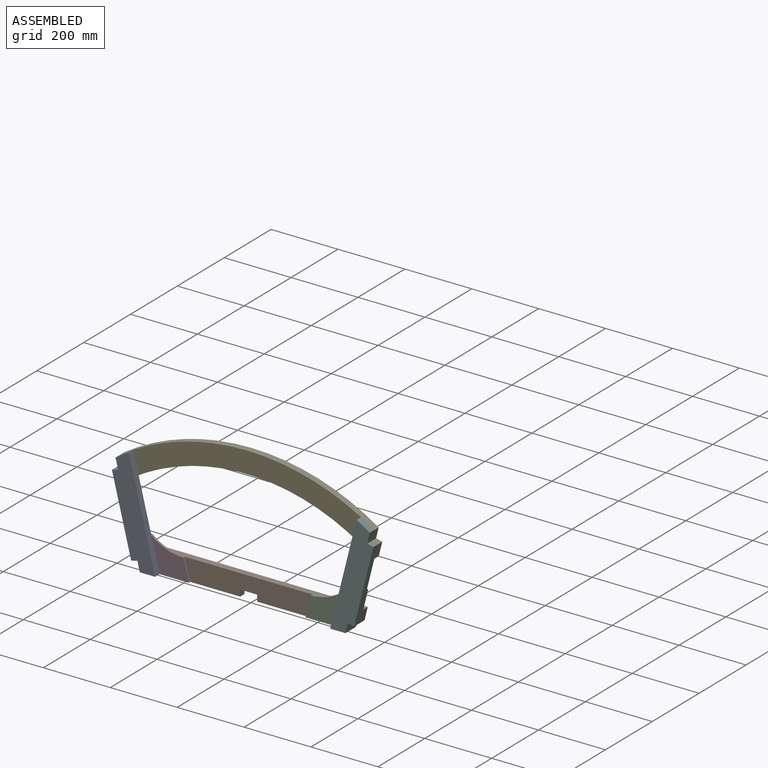
[diagram: assembled view]
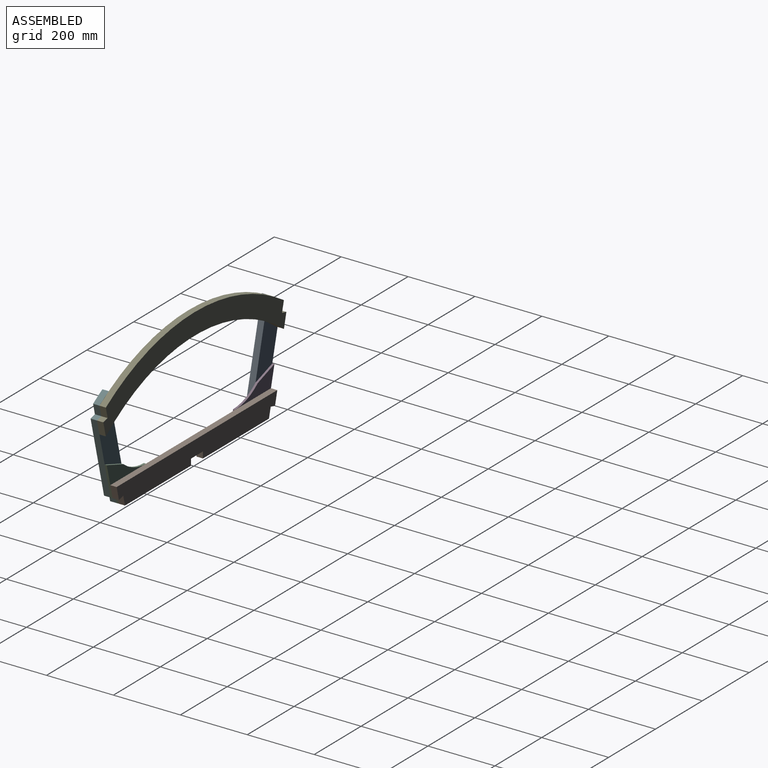
[diagram: assembled view, second angle]
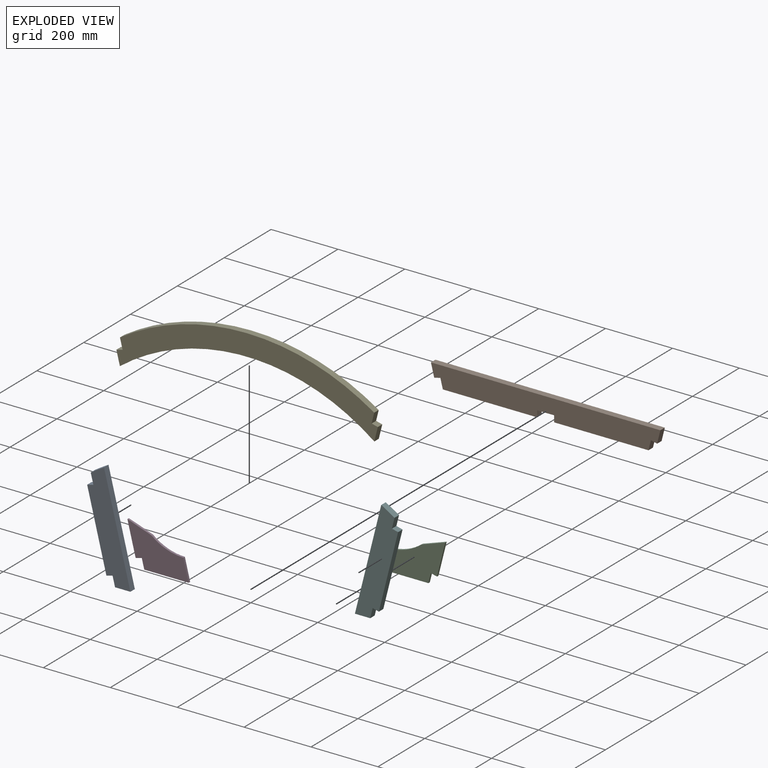
[diagram: exploded view]
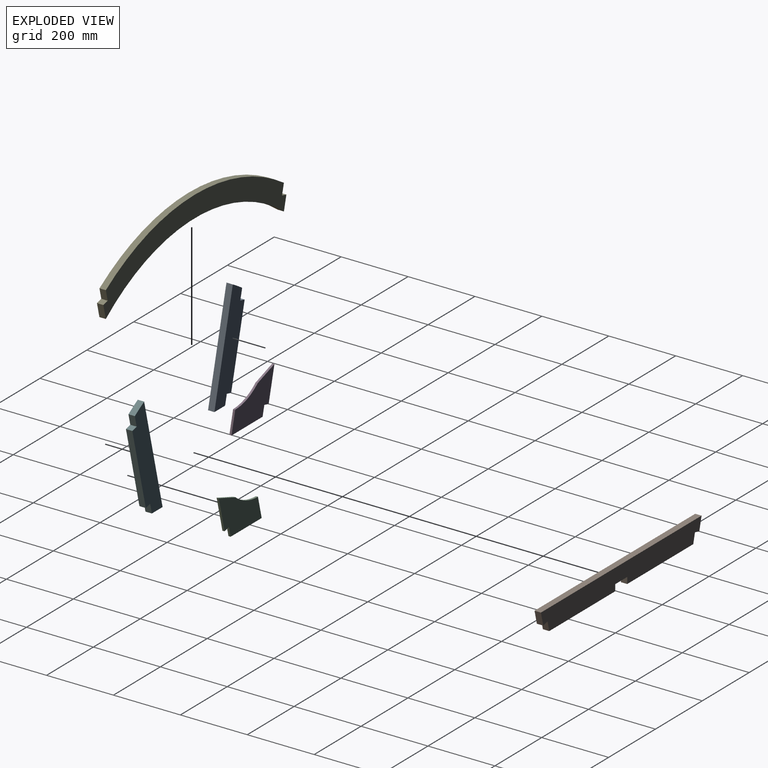
[diagram: exploded view, second angle]
ASSEMBLY  parts=6 mates=5
PART A: 10 faces, bbox 129.1x19.1x314.8 mm
  f0: plane 230.12x57.53mm, normal (-0.97,0,-0.24), area 4518.6mm2, adj f1,f7,f8,f9
  f1: plane 19.05x18.48mm, normal (0.24,0,-0.97), area 362.9mm2, adj f0,f2,f8,f9
  f2: plane 29.26x19.05mm, normal (-0.97,0,-0.24), area 574.6mm2, adj f1,f3,f8,f9
  f3: plane 45.82x19.05mm, normal (0,0,-1), area 872.8mm2, adj f2,f4,f8,f9
  f4: plane 314.84x78.71mm, normal (0.97,0,0.24), area 6182.2mm2, adj f3,f5,f8,f9
  f5: cylinder r=695.32mm len=39.79mm, axis (0,1,0), area 886.5mm2, adj f4,f6,f8,f9
  f6: plane 31.34x19.05mm, normal (-0.97,0,-0.24), area 615.5mm2, adj f5,f7,f8,f9
  f7: plane 19.05x18.48mm, normal (-0.24,0,0.97), area 362.9mm2, adj f0,f6,f8,f9
  f8: plane 314.84x129.14mm, normal (0,-1,0), area 18403.5mm2, adj f0,f1,f2,f3,f4,f5,f6,f7
  f9: plane 314.84x129.14mm, normal (0,1,0), area 18403.5mm2, adj f0,f1,f2,f3,f4,f5,f6,f7
PART B: 14 faces, bbox 685.8x19.1x63.5 mm
  f0: plane 38.86x19.05mm, normal (-0.97,0,-0.24), area 763mm2, adj f1,f11,f12,f13
  f1: plane 19.05x18.48mm, normal (0.24,0,-0.97), area 362.9mm2, adj f0,f2,f12,f13
  f2: plane 29.26x19.05mm, normal (-0.97,0,-0.24), area 574.6mm2, adj f1,f3,f12,f13
  f3: plane 281.99x19.05mm, normal (0,0,-1), area 5371.9mm2, adj f2,f4,f12,f13
  f4: plane 19.05x19.05mm, normal (1,0,0), area 362.9mm2, adj f3,f5,f12,f13
  f5: plane 50.8x19.05mm, normal (0,0,-1), area 967.7mm2, adj f4,f6,f12,f13
  f6: plane 19.05x19.05mm, normal (-1,0,0), area 362.9mm2, adj f5,f7,f12,f13
  f7: plane 281.99x19.05mm, normal (0,0,-1), area 5371.9mm2, adj f6,f8,f12,f13
  f8: plane 29.26x19.05mm, normal (0.97,0,-0.24), area 574.6mm2, adj f7,f9,f12,f13
  f9: plane 19.05x18.48mm, normal (-0.24,0,-0.97), area 362.9mm2, adj f8,f10,f12,f13
  f10: plane 38.86x19.05mm, normal (0.97,0,-0.24), area 763mm2, adj f9,f11,f12,f13
  f11: plane 685.8x19.05mm, normal (0,0,1), area 13064.5mm2, adj f0,f10,f12,f13
  f12: plane 685.8x63.5mm, normal (0,-1,0), area 40514mm2, adj f0,f1,f2,f3,f4,f5,f6,f7
  f13: plane 685.8x63.5mm, normal (0,1,0), area 40514mm2, adj f0,f1,f2,f3,f4,f5,f6,f7
PART C: 9 faces, bbox 183.2x6.4x123.2 mm
  f0: plane 98.57x24.64mm, normal (-0.97,0,-0.24), area 645.2mm2, adj f1,f6,f7,f8
  f1: plane 18.48x6.35mm, normal (0.24,0,-0.97), area 121mm2, adj f0,f2,f7,f8
  f2: plane 29.26x7.32mm, normal (-0.97,0,-0.24), area 191.5mm2, adj f1,f3,f7,f8
  f3: plane 132.76x6.35mm, normal (0,0,-1), area 843mm2, adj f2,f4,f7,f8
  f4: plane 63.5x15.88mm, normal (0.97,0,0.24), area 415.6mm2, adj f3,f5,f7,f8
  f5: cylinder r=152.4mm len=95.71mm, axis (0,1,0), area 660mm2, adj f4,f6,f7,f8
  f6: plane 71.61x24.64mm, normal (0.33,0,0.95), area 480.9mm2, adj f0,f5,f7,f8
  f7: plane 183.2x123.21mm, normal (0,-1,0), area 13174.5mm2, adj f0,f1,f2,f3,f4,f5,f6
  f8: plane 183.2x123.21mm, normal (0,1,0), area 13174.5mm2, adj f0,f1,f2,f3,f4,f5,f6
PART D: same geometry as C
PART E: 10 faces, bbox 781.4x19.1x190.8 mm
  f0: plane 41.73x19.05mm, normal (-0.97,0,-0.24), area 819.4mm2, adj f1,f7,f8,f9
  f1: cylinder r=631.82mm len=760.57mm, axis (0,1,0), area 15547.3mm2, adj f0,f2,f8,f9
  f2: plane 41.73x19.05mm, normal (0.97,0,-0.24), area 819.4mm2, adj f1,f3,f8,f9
  f3: plane 19.05x18.48mm, normal (0.24,0,0.97), area 362.9mm2, adj f2,f4,f8,f9
  f4: plane 31.34x19.05mm, normal (0.97,0,-0.24), area 615.5mm2, adj f3,f5,f8,f9
  f5: cylinder r=695.32mm len=760.14mm, axis (0,1,0), area 15320.4mm2, adj f4,f6,f8,f9
  f6: plane 31.34x19.05mm, normal (-0.97,0,-0.24), area 615.5mm2, adj f5,f7,f8,f9
  f7: plane 19.05x18.48mm, normal (-0.24,0,0.97), area 362.9mm2, adj f0,f6,f8,f9
  f8: plane 781.43x190.76mm, normal (0,-1,0), area 51627.6mm2, adj f0,f1,f2,f3,f4,f5,f6,f7
  f9: plane 781.43x190.76mm, normal (0,1,0), area 51627.6mm2, adj f0,f1,f2,f3,f4,f5,f6,f7
PART F: same geometry as A
PLACE A t=(0,-15.87,-19.05)mm
PLACE B t=(0,9.53,-19.05)mm
PLACE C rot(axis=(0,0,1),180deg) t=(0,-15.87,-19.05)mm
PLACE D t=(0,-9.52,-19.05)mm
PLACE E t=(0,3.18,-19.05)mm
PLACE F rot(axis=(0,0,1),180deg) t=(0,-34.92,-19.05)mm
MATE fastened D.f7 <-> A.f9  axis (0,-1,0) through (-314.7,-15.87,10.21)mm
MATE fastened F.f8 <-> C.f8  axis (0,1,0) through (314.7,-15.87,10.21)mm
MATE fastened E.f8 <-> A.f9  axis (0,-1,0) through (-372.23,-15.87,240.33)mm
MATE fastened C.f7 <-> B.f12  axis (0,1,0) through (314.7,-9.52,10.21)mm
MATE fastened B.f12 <-> D.f8  axis (0,-1,0) through (-314.7,-9.52,10.21)mm
